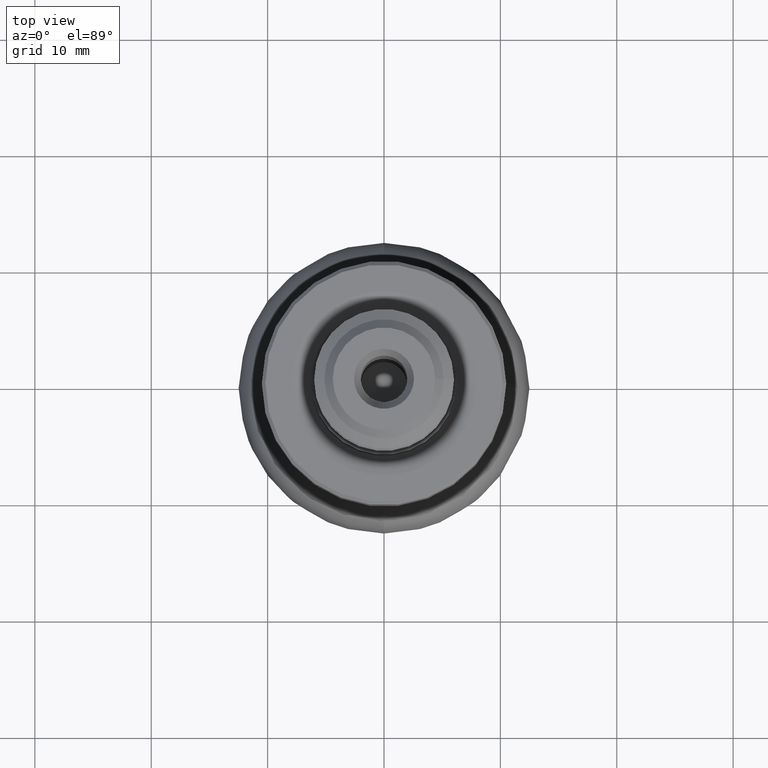
[diagram: clean part render]
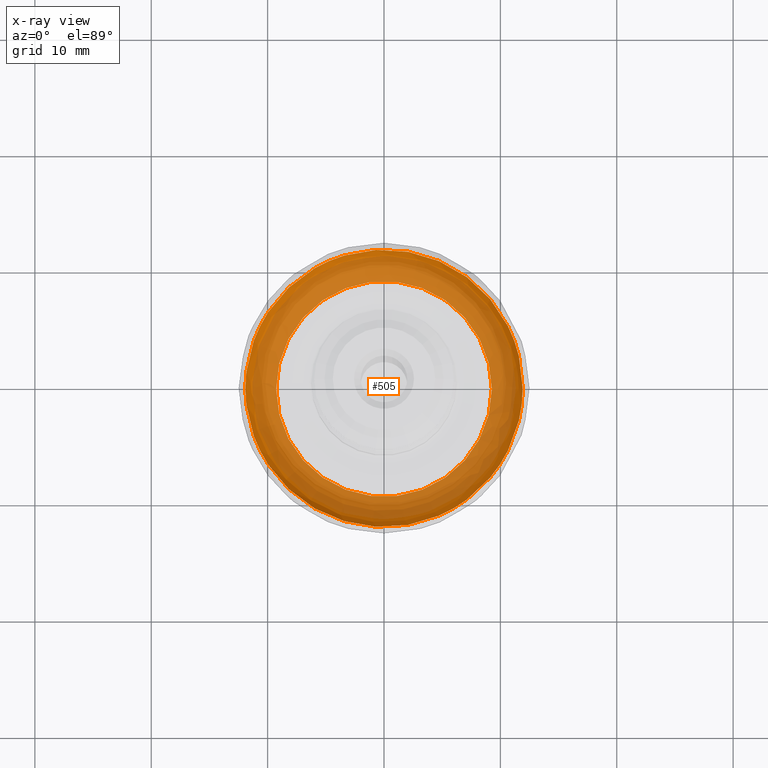
[diagram: x-ray — body ghosted, one internal face saturated and labeled with its STEP entity id]
A machine part, top view, then the same camera in x-ray: the body is ghosted and one INTERNAL B-rep face — a face not visible from any outside direction — is saturated and labeled: STEP entity #505.
In plain terms, the highlighted face is a freeform B-spline surface patch.
Its self-contained STEP definition (entity closure, byte-faithful):
#1 = CARTESIAN_POINT ( 'NONE',  ( 11.26764876204763700, 3.879762605621948500, -4.043536449715501700 ) ) ;
#35 = CARTESIAN_POINT ( 'NONE',  ( 15.11477290697086700, -14.81955092998030000, -1.148383131596125300 ) ) ;
#47 = CARTESIAN_POINT ( 'NONE',  ( -10.27862520102489600, -3.539214483367757700, -2.088431977388280000 ) ) ;
#69 = CARTESIAN_POINT ( 'NONE',  ( 18.97306364691996100, -18.60248147582904100, -3.896988474805434000 ) ) ;
#79 = CARTESIAN_POINT ( 'NONE',  ( -3.446719973854909000, -25.95271062754204600, -3.369317329380819200 ) ) ;
#86 = CARTESIAN_POINT ( 'NONE',  ( -14.79889496817245300, 14.50984272394291900, -1.083567117429658600 ) ) ;
#109 = CARTESIAN_POINT ( 'NONE',  ( -3.340675449997733400, -25.15422892256538700, -2.688316084671248600 ) ) ;
#119 = CARTESIAN_POINT ( 'NONE',  ( 11.07042824578780200, 3.811854135966446400, -3.369317329380818700 ) ) ;
#138 = CARTESIAN_POINT ( 'NONE',  ( -3.485885153465368100, -26.24761203549399400, -3.752592956141496600 ) ) ;
#159 = VERTEX_POINT ( 'NONE', #1447 ) ;
#169 = CARTESIAN_POINT ( 'NONE',  ( 18.52291031382221600, -18.16112054455988600, -3.132502216432978800 ) ) ;
#171 = CARTESIAN_POINT ( 'NONE',  ( -16.42594204979041500, 16.10511029692729000, -1.587543244217837700 ) ) ;
#176 = CARTESIAN_POINT ( 'NONE',  ( -10.96903028058839500, -3.776940016616908500, -3.132502216432978800 ) ) ;
#184 = CARTESIAN_POINT ( 'NONE',  ( 3.415150247354578300, 25.71500057779369200, -3.132502216432978800 ) ) ;
#201 = DIRECTION ( 'NONE',  ( 1.000000000000000000, 0.0000000000000000000, 0.0000000000000000000 ) ) ;
#214 = CARTESIAN_POINT ( 'NONE',  ( -10.72982665902570400, -3.694575604513985900, -2.688316084671249100 ) ) ;
#228 = CARTESIAN_POINT ( 'NONE',  ( -10.27862520102489600, -3.539214483367757700, -2.088431977388280000 ) ) ;
#250 = CARTESIAN_POINT ( 'NONE',  ( 8.763716083211658500, 3.017589442480396400, -1.083567117429658600 ) ) ;
#255 = CARTESIAN_POINT ( 'NONE',  ( 9.727232528728999100, 3.349354760530708600, -1.587543244217837700 ) ) ;
#264 = CARTESIAN_POINT ( 'NONE',  ( -11.07042824578780200, -3.811854135966446400, -3.369317329380818700 ) ) ;
#288 = CARTESIAN_POINT ( 'NONE',  ( 11.23560531971560800, 3.868729163602176300, -3.896988474805434400 ) ) ;
#299 = CARTESIAN_POINT ( 'NONE',  ( -2.843315696750961400, -21.40926737892056400, -1.229608463019044000 ) ) ;
#305 = CARTESIAN_POINT ( 'NONE',  ( 18.69413651772069300, -18.32900235560915500, -3.369317329380819200 ) ) ;
#328 = CARTESIAN_POINT ( 'NONE',  ( 3.446719973854909000, 25.95271062754204600, -3.369317329380819200 ) ) ;
#355 = CARTESIAN_POINT ( 'NONE',  ( -9.727232528728999100, -3.349354760530708600, -1.587543244217837700 ) ) ;
#366 = CARTESIAN_POINT ( 'NONE',  ( 0.0000000000000000000, 0.0000000000000000000, -4.043536449715501700 ) ) ;
#375 = CARTESIAN_POINT ( 'NONE',  ( -18.97306364691996100, 18.60248147582904100, -3.896988474805434000 ) ) ;
#380 = CARTESIAN_POINT ( 'NONE',  ( -11.19622184489067300, -3.855168345712652200, -3.752592956141497000 ) ) ;
#383 = CARTESIAN_POINT ( 'NONE',  ( -11.19622184489067300, -3.855168345712652200, -3.752592956141497000 ) ) ;
#393 = CARTESIAN_POINT ( 'NONE',  ( -10.72982665902570400, -3.694575604513985900, -2.688316084671249100 ) ) ;
#443 = FACE_OUTER_BOUND ( 'NONE', #1780, .T. ) ;
#444 = CARTESIAN_POINT ( 'NONE',  ( 3.498146992511256000, 26.33993980303339900, -3.896988474805434000 ) ) ;
#454 = CARTESIAN_POINT ( 'NONE',  ( -2.786776999801722000, -20.98354888356487200, -1.148383131596125300 ) ) ;
#459 = CARTESIAN_POINT ( 'NONE',  ( 19.02717397329153200, -18.65553491847332500, -4.043536449715500900 ) ) ;
#503 = CARTESIAN_POINT ( 'NONE',  ( -8.950774953386293500, -3.081998976792285700, -1.148383131596125300 ) ) ;
#504 = CARTESIAN_POINT ( 'NONE',  ( -9.132370090918417600, -3.144527197083728100, -1.229608463019044000 ) ) ;
#505 = ADVANCED_FACE ( 'NONE', ( #909, #443 ), #703, .F. ) ;
#560 = CARTESIAN_POINT ( 'NONE',  ( -10.10310862058672600, -3.478779278132721100, -1.907257010783633700 ) ) ;
#576 = CARTESIAN_POINT ( 'NONE',  ( 10.10310862058672600, 3.478779278132721100, -1.907257010783633700 ) ) ;
#585 = CARTESIAN_POINT ( 'NONE',  ( -9.524627958079067400, -3.279592412277243100, -1.446487037439815100 ) ) ;
#609 = EDGE_CURVE ( 'NONE', #1091, #1091, #1908, .T. ) ;
#687 = CARTESIAN_POINT ( 'NONE',  ( -3.498146992511256000, -26.33993980303339900, -3.896988474805434000 ) ) ;
#703 =( BOUNDED_SURFACE ( )  B_SPLINE_SURFACE ( 3, 3, ( 
 ( #1306, #2094, #459, #1, #893, #1070, #1392 ),
 ( #1238, #687, #69, #288, #444, #375, #1684 ),
 ( #380, #138, #1890, #1359, #1555, #1501, #383 ),
 ( #264, #79, #305, #119, #328, #2078, #1565 ),
 ( #176, #1705, #169, #1508, #184, #875, #995 ),
 ( #214, #109, #757, #1204, #1655, #1411, #393 ),
 ( #959, #835, #785, #1631, #1372, #1846, #2010 ),
 ( #47, #950, #1181, #1723, #1492, #1865, #228 ),
 ( #560, #1294, #1849, #576, #1404, #1719, #847 ),
 ( #2073, #1400, #1277, #255, #982, #171, #355 ),
 ( #585, #1004, #1096, #1646, #1167, #1222, #1064 ),
 ( #504, #299, #1710, #1814, #1026, #1976, #1925 ),
 ( #1906, #454, #35, #2127, #1196, #712, #503 ),
 ( #1479, #973, #1134, #250, #2045, #86, #1664 ) ),
 .UNSPECIFIED., .F., .T., .T. ) 
 B_SPLINE_SURFACE_WITH_KNOTS ( ( 4, 2, 2, 2, 2, 2, 4 ),
 ( 4, 3, 4 ),
 ( 0.0000000000000000000, 0.1091815673975662000, 0.2941697952564391600, 0.4791580231153127500, 0.6641462509741856700, 0.8491344788330587000, 1.000000000000000000 ),
 ( 0.0000000000000000000, 0.5000000000000000000, 1.000000000000000000 ),
 .UNSPECIFIED. ) 
 GEOMETRIC_REPRESENTATION_ITEM ( )  RATIONAL_B_SPLINE_SURFACE ( (
 ( 1.000000000000000000, 0.3333333333333333100, 0.3333333333333333100, 1.000000000000000000, 0.3333333333333333100, 0.3333333333333333100, 1.000000000000000000),
 ( 1.000000000000000000, 0.3333333333333333100, 0.3333333333333333100, 1.000000000000000000, 0.3333333333333333100, 0.3333333333333333100, 1.000000000000000000),
 ( 1.000000000000000000, 0.3333333333333333100, 0.3333333333333333100, 1.000000000000000000, 0.3333333333333333100, 0.3333333333333333100, 1.000000000000000000),
 ( 1.000000000000000000, 0.3333333333333333100, 0.3333333333333333100, 1.000000000000000000, 0.3333333333333333100, 0.3333333333333333100, 1.000000000000000000),
 ( 1.000000000000000000, 0.3333333333333333100, 0.3333333333333333100, 1.000000000000000000, 0.3333333333333333100, 0.3333333333333333100, 1.000000000000000000),
 ( 1.000000000000000000, 0.3333333333333333100, 0.3333333333333333100, 1.000000000000000000, 0.3333333333333333100, 0.3333333333333333100, 1.000000000000000000),
 ( 1.000000000000000000, 0.3333333333333333100, 0.3333333333333333100, 1.000000000000000000, 0.3333333333333333100, 0.3333333333333333100, 1.000000000000000000),
 ( 1.000000000000000000, 0.3333333333333333100, 0.3333333333333333100, 1.000000000000000000, 0.3333333333333333100, 0.3333333333333333100, 1.000000000000000000),
 ( 1.000000000000000000, 0.3333333333333333100, 0.3333333333333333100, 1.000000000000000000, 0.3333333333333333100, 0.3333333333333333100, 1.000000000000000000),
 ( 1.000000000000000000, 0.3333333333333333100, 0.3333333333333333100, 1.000000000000000000, 0.3333333333333333100, 0.3333333333333333100, 1.000000000000000000),
 ( 1.000000000000000000, 0.3333333333333333100, 0.3333333333333333100, 1.000000000000000000, 0.3333333333333333100, 0.3333333333333333100, 1.000000000000000000),
 ( 1.000000000000000000, 0.3333333333333333100, 0.3333333333333333100, 1.000000000000000000, 0.3333333333333333100, 0.3333333333333333100, 1.000000000000000000),
 ( 1.000000000000000000, 0.3333333333333333100, 0.3333333333333333100, 1.000000000000000000, 0.3333333333333333100, 0.3333333333333333100, 1.000000000000000000),
 ( 1.000000000000000000, 0.3333333333333333100, 0.3333333333333333100, 1.000000000000000000, 0.3333333333333333100, 0.3333333333333333100, 1.000000000000000000) ) ) 
 REPRESENTATION_ITEM ( '' )  SURFACE ( )  );
#712 = CARTESIAN_POINT ( 'NONE',  ( -15.11477290697086700, 14.81955092998030000, -1.148383131596125300 ) ) ;
#757 = CARTESIAN_POINT ( 'NONE',  ( 18.11897786805368000, -17.76507771353742600, -2.688316084671248600 ) ) ;
#785 = CARTESIAN_POINT ( 'NONE',  ( 17.88612445598573300, -17.53677239789691100, -2.479366792550550300 ) ) ;
#819 = CARTESIAN_POINT ( 'NONE',  ( 9.268687373652870300, 0.0000000000000000000, -1.083567117429663700 ) ) ;
#821 = EDGE_LOOP ( 'NONE', ( #1551 ) ) ;
#835 = CARTESIAN_POINT ( 'NONE',  ( -3.297743244726090600, -24.83096300352672600, -2.479366792550550300 ) ) ;
#847 = CARTESIAN_POINT ( 'NONE',  ( -10.10310862058672600, -3.478779278132721100, -1.907257010783633700 ) ) ;
#875 = CARTESIAN_POINT ( 'NONE',  ( -18.52291031382221600, 18.16112054455988600, -3.132502216432978800 ) ) ;
#893 = CARTESIAN_POINT ( 'NONE',  ( 3.508123550803739400, 26.41506012971721500, -4.043536449715500900 ) ) ;
#909 = FACE_OUTER_BOUND ( 'NONE', #821, .T. ) ;
#916 = DIRECTION ( 'NONE',  ( 1.000000000000000000, 0.0000000000000000000, 0.0000000000000000000 ) ) ;
#950 = CARTESIAN_POINT ( 'NONE',  ( -3.200196234289379900, -24.09646488541755000, -2.088431977388279600 ) ) ;
#959 = CARTESIAN_POINT ( 'NONE',  ( -10.59193385035591100, -3.647095302814909800, -2.479366792550550300 ) ) ;
#973 = CARTESIAN_POINT ( 'NONE',  ( -2.728537198250867000, -20.54502160890371700, -1.083567117429658600 ) ) ;
#982 = CARTESIAN_POINT ( 'NONE',  ( 3.028523007667581500, 22.80381981798870700, -1.587543244217837700 ) ) ;
#995 = CARTESIAN_POINT ( 'NONE',  ( -10.96903028058839500, -3.776940016616908500, -3.132502216432978800 ) ) ;
#1004 = CARTESIAN_POINT ( 'NONE',  ( -2.965443133524580300, -22.32884832843537400, -1.446487037439815100 ) ) ;
#1026 = CARTESIAN_POINT ( 'NONE',  ( 2.843315696750961400, 21.40926737892056400, -1.229608463019044000 ) ) ;
#1045 = ORIENTED_EDGE ( 'NONE', *, *, #1116, .T. ) ;
#1064 = CARTESIAN_POINT ( 'NONE',  ( -9.524627958079067400, -3.279592412277243100, -1.446487037439815100 ) ) ;
#1070 = CARTESIAN_POINT ( 'NONE',  ( -19.02717397329153200, 18.65553491847332500, -4.043536449715500900 ) ) ;
#1091 = VERTEX_POINT ( 'NONE', #819 ) ;
#1096 = CARTESIAN_POINT ( 'NONE',  ( 16.08381278263355100, -15.76966350388089000, -1.446487037439815100 ) ) ;
#1116 = EDGE_CURVE ( 'NONE', #159, #159, #1782, .T. ) ;
#1134 = CARTESIAN_POINT ( 'NONE',  ( 14.79889496817245300, -14.50984272394291900, -1.083567117429658600 ) ) ;
#1167 = CARTESIAN_POINT ( 'NONE',  ( 2.965443133524580300, 22.32884832843537400, -1.446487037439815100 ) ) ;
#1181 = CARTESIAN_POINT ( 'NONE',  ( 17.35705416776041300, -17.01803591868203500, -2.088431977388279600 ) ) ;
#1196 = CARTESIAN_POINT ( 'NONE',  ( 2.786776999801722000, 20.98354888356487200, -1.148383131596125300 ) ) ;
#1204 = CARTESIAN_POINT ( 'NONE',  ( 10.72982665902570400, 3.694575604513985900, -2.688316084671249100 ) ) ;
#1222 = CARTESIAN_POINT ( 'NONE',  ( -16.08381278263355100, 15.76966350388089000, -1.446487037439815100 ) ) ;
#1238 = CARTESIAN_POINT ( 'NONE',  ( -11.23560531971560800, -3.868729163602176300, -3.896988474805434400 ) ) ;
#1277 = CARTESIAN_POINT ( 'NONE',  ( 16.42594204979041500, -16.10511029692729000, -1.587543244217837700 ) ) ;
#1294 = CARTESIAN_POINT ( 'NONE',  ( -3.145550064321282600, -23.68499651930617100, -1.907257010783633700 ) ) ;
#1306 = CARTESIAN_POINT ( 'NONE',  ( -11.26764876204763700, -3.879762605621948500, -4.043536449715501700 ) ) ;
#1354 = DIRECTION ( 'NONE',  ( -0.0000000000000000000, -0.0000000000000000000, 1.000000000000000000 ) ) ;
#1359 = CARTESIAN_POINT ( 'NONE',  ( 11.19622184489067300, 3.855168345712652200, -3.752592956141497000 ) ) ;
#1372 = CARTESIAN_POINT ( 'NONE',  ( 3.297743244726090600, 24.83096300352672600, -2.479366792550550300 ) ) ;
#1392 = CARTESIAN_POINT ( 'NONE',  ( -11.26764876204763700, -3.879762605621948500, -4.043536449715501700 ) ) ;
#1400 = CARTESIAN_POINT ( 'NONE',  ( -3.028523007667581500, -22.80381981798870700, -1.587543244217837700 ) ) ;
#1404 = CARTESIAN_POINT ( 'NONE',  ( 3.145550064321282600, 23.68499651930617100, -1.907257010783633700 ) ) ;
#1411 = CARTESIAN_POINT ( 'NONE',  ( -18.11897786805368000, 17.76507771353742600, -2.688316084671248600 ) ) ;
#1447 = CARTESIAN_POINT ( 'NONE',  ( 11.91689835908891300, 0.0000000000000000000, -4.043536449715501700 ) ) ;
#1479 = CARTESIAN_POINT ( 'NONE',  ( -8.763716083211658500, -3.017589442480396400, -1.083567117429658600 ) ) ;
#1481 = CARTESIAN_POINT ( 'NONE',  ( 0.0000000000000000000, 0.0000000000000000000, -1.083567117429663700 ) ) ;
#1492 = CARTESIAN_POINT ( 'NONE',  ( 3.200196234289379900, 24.09646488541755000, -2.088431977388279600 ) ) ;
#1501 = CARTESIAN_POINT ( 'NONE',  ( -18.90655853631597700, 18.53727534406869300, -3.752592956141496600 ) ) ;
#1508 = CARTESIAN_POINT ( 'NONE',  ( 10.96903028058839500, 3.776940016616908500, -3.132502216432978800 ) ) ;
#1551 = ORIENTED_EDGE ( 'NONE', *, *, #609, .F. ) ;
#1555 = CARTESIAN_POINT ( 'NONE',  ( 3.485885153465368100, 26.24761203549399400, -3.752592956141496600 ) ) ;
#1565 = CARTESIAN_POINT ( 'NONE',  ( -11.07042824578780200, -3.811854135966446400, -3.369317329380818700 ) ) ;
#1575 = DIRECTION ( 'NONE',  ( -0.0000000000000000000, -0.0000000000000000000, 1.000000000000000000 ) ) ;
#1631 = CARTESIAN_POINT ( 'NONE',  ( 10.59193385035591100, 3.647095302814909800, -2.479366792550550300 ) ) ;
#1646 = CARTESIAN_POINT ( 'NONE',  ( 9.524627958079067400, 3.279592412277243100, -1.446487037439815100 ) ) ;
#1655 = CARTESIAN_POINT ( 'NONE',  ( 3.340675449997733400, 25.15422892256538700, -2.688316084671248600 ) ) ;
#1664 = CARTESIAN_POINT ( 'NONE',  ( -8.763716083211658500, -3.017589442480396400, -1.083567117429658600 ) ) ;
#1684 = CARTESIAN_POINT ( 'NONE',  ( -11.23560531971560800, -3.868729163602176300, -3.896988474805434400 ) ) ;
#1705 = CARTESIAN_POINT ( 'NONE',  ( -3.415150247354578300, -25.71500057779369200, -3.132502216432978800 ) ) ;
#1710 = CARTESIAN_POINT ( 'NONE',  ( 15.42142448508587400, -15.12021298475310600, -1.229608463019044000 ) ) ;
#1719 = CARTESIAN_POINT ( 'NONE',  ( -17.06066717685216700, 16.72743796304072800, -1.907257010783633700 ) ) ;
#1723 = CARTESIAN_POINT ( 'NONE',  ( 10.27862520102489600, 3.539214483367757700, -2.088431977388280000 ) ) ;
#1774 = AXIS2_PLACEMENT_3D ( 'NONE', #1481, #1575, #916 ) ;
#1780 = EDGE_LOOP ( 'NONE', ( #1045 ) ) ;
#1782 = CIRCLE ( 'NONE', #1919, 11.91689835908891300 ) ;
#1814 = CARTESIAN_POINT ( 'NONE',  ( 9.132370090918417600, 3.144527197083728100, -1.229608463019044000 ) ) ;
#1846 = CARTESIAN_POINT ( 'NONE',  ( -17.88612445598573300, 17.53677239789691100, -2.479366792550550300 ) ) ;
#1849 = CARTESIAN_POINT ( 'NONE',  ( 17.06066717685216700, -16.72743796304072800, -1.907257010783633700 ) ) ;
#1865 = CARTESIAN_POINT ( 'NONE',  ( -17.35705416776041300, 17.01803591868203500, -2.088431977388279600 ) ) ;
#1890 = CARTESIAN_POINT ( 'NONE',  ( 18.90655853631597700, -18.53727534406869300, -3.752592956141496600 ) ) ;
#1906 = CARTESIAN_POINT ( 'NONE',  ( -8.950774953386293500, -3.081998976792285700, -1.148383131596125300 ) ) ;
#1908 = CIRCLE ( 'NONE', #1774, 9.268687373652870300 ) ;
#1919 = AXIS2_PLACEMENT_3D ( 'NONE', #366, #1354, #201 ) ;
#1925 = CARTESIAN_POINT ( 'NONE',  ( -9.132370090918417600, -3.144527197083728100, -1.229608463019044000 ) ) ;
#1976 = CARTESIAN_POINT ( 'NONE',  ( -15.42142448508587400, 15.12021298475310600, -1.229608463019044000 ) ) ;
#2010 = CARTESIAN_POINT ( 'NONE',  ( -10.59193385035591100, -3.647095302814909800, -2.479366792550550300 ) ) ;
#2045 = CARTESIAN_POINT ( 'NONE',  ( 2.728537198250867000, 20.54502160890371700, -1.083567117429658600 ) ) ;
#2073 = CARTESIAN_POINT ( 'NONE',  ( -9.727232528728999100, -3.349354760530708600, -1.587543244217837700 ) ) ;
#2078 = CARTESIAN_POINT ( 'NONE',  ( -18.69413651772069300, 18.32900235560915500, -3.369317329380819200 ) ) ;
#2094 = CARTESIAN_POINT ( 'NONE',  ( -3.508123550803739400, -26.41506012971721500, -4.043536449715500900 ) ) ;
#2127 = CARTESIAN_POINT ( 'NONE',  ( 8.950774953386293500, 3.081998976792285700, -1.148383131596125300 ) ) ;